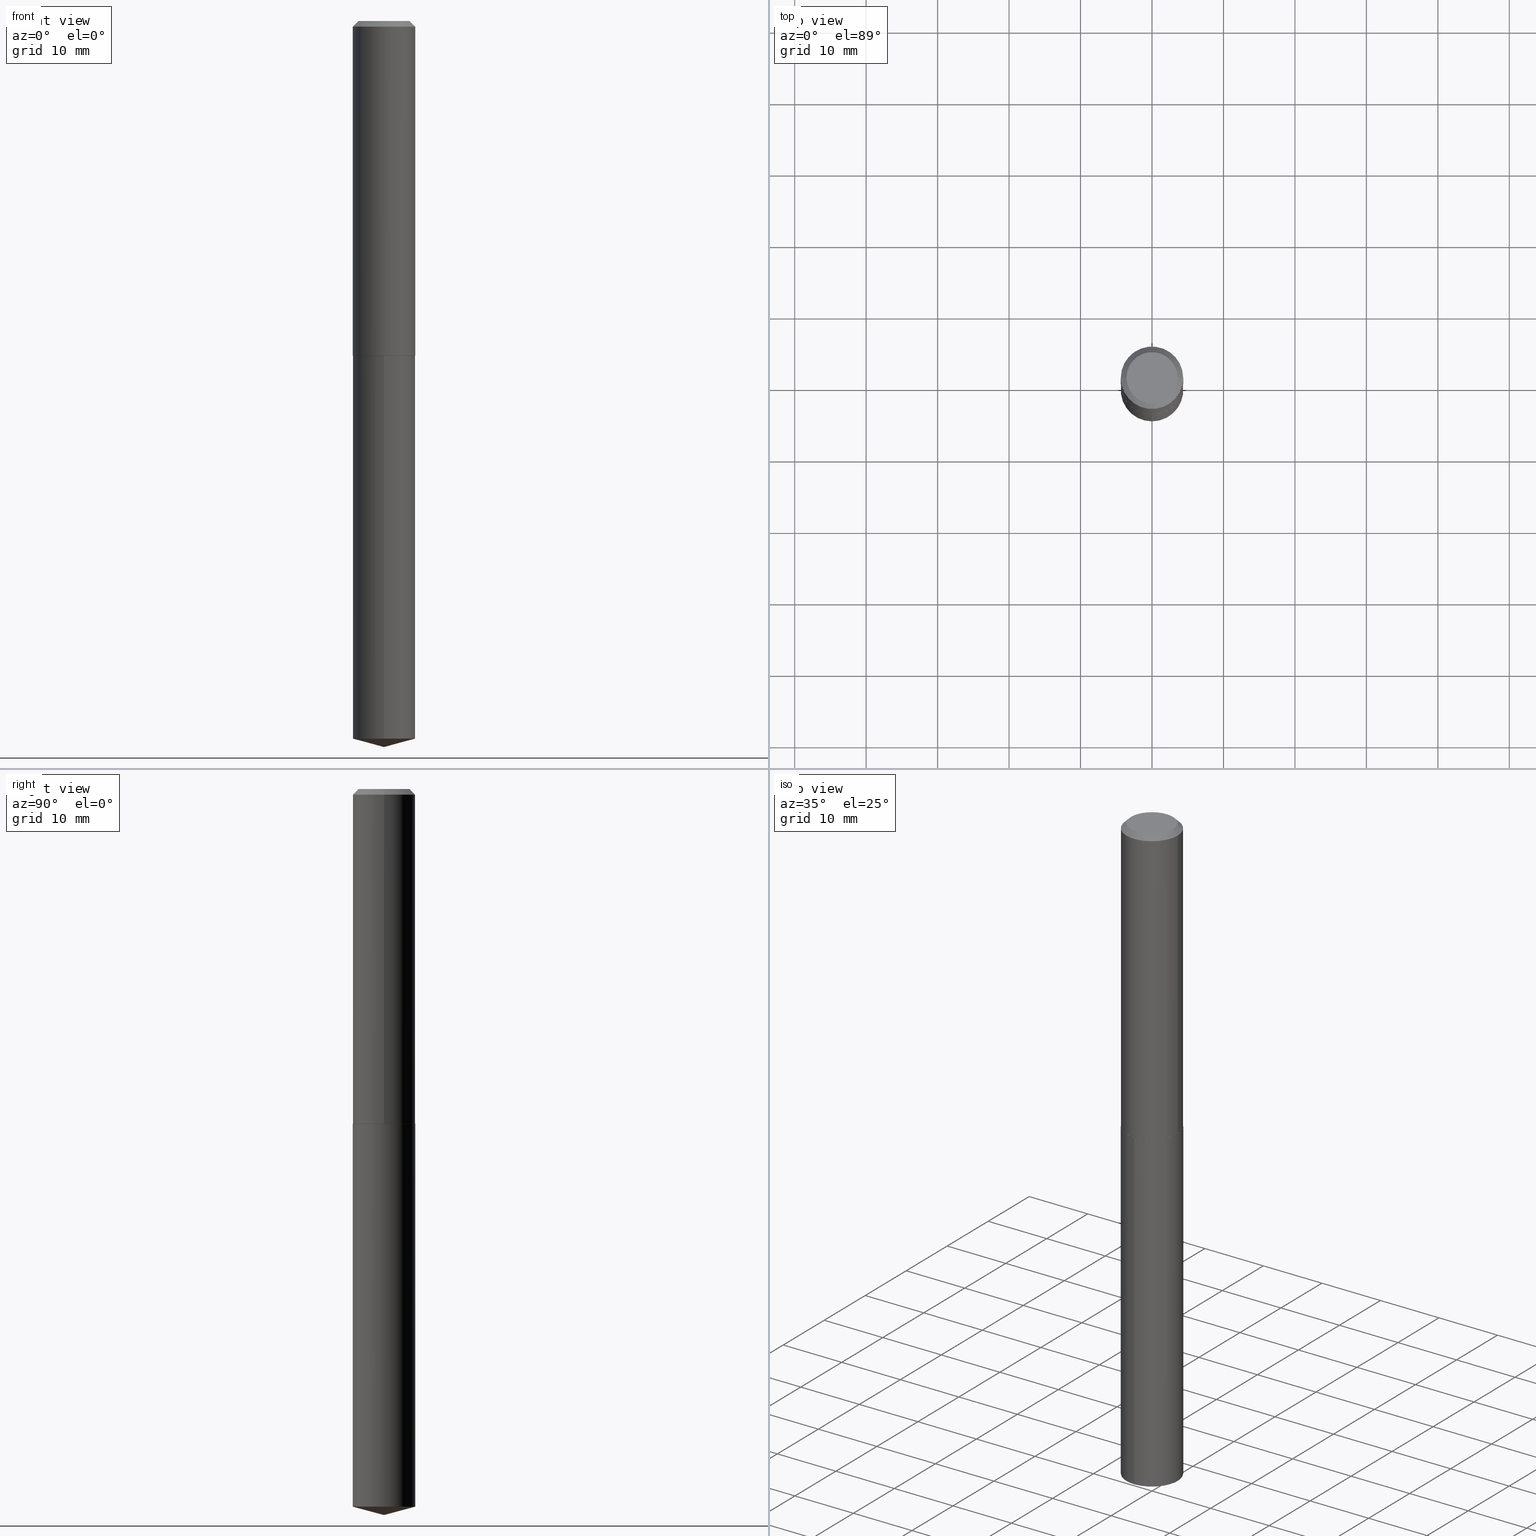
[diagram: canonical four-view strip — front | top / right | iso, engineering-drawing reading convention]
A machine part, canonical four-view strip (front | top / right | iso — engineering-drawing reading convention). The complete STEP part file that produces these views, byte-faithful:
ISO-10303-21;
HEADER;
FILE_DESCRIPTION (( 'STEP AP203' ),
    '1' );
FILE_NAME ('53122.STEP',
    '2024-04-22T19:12:26',
    ( '' ),
    ( '' ),
    'SwSTEP 2.0',
    'SolidWorks 2023',
    '' );
FILE_SCHEMA (( 'CONFIG_CONTROL_DESIGN' ));
ENDSEC;

DATA;
#1 = CARTESIAN_POINT ( 'NONE',  ( -1.175472951769410740E-47, 1.678263842514562368E-33, 4.806738686653361095E-19 ) ) ;
#2 = DIRECTION ( 'NONE',  ( 1.000000000000000000, -6.982962677686266711E-15, 4.876176775795936353E-29 ) ) ;
#3 = CLOSED_SHELL ( 'NONE', ( #90, #206, #231, #80, #34 ) ) ;
#4 = LINE ( 'NONE', #119, #235 ) ;
#5 = APPROVAL_PERSON_ORGANIZATION ( #76, #173, #315 ) ;
#6 = EDGE_CURVE ( 'NONE', #176, #286, #109, .T. ) ;
#7 = CARTESIAN_POINT ( 'NONE',  ( 0.1719000000000002193, -7.636218836183839889E-15, -1.843299999999999939 ) ) ;
#8 = FACE_OUTER_BOUND ( 'NONE', #244, .T. ) ;
#9 = PERSON_AND_ORGANIZATION_ROLE ( 'creator' ) ;
#10 = ADVANCED_FACE ( 'NONE', ( #8 ), #157, .T. ) ;
#11 = CIRCLE ( 'NONE', #106, 0.1714000000000003854 ) ;
#12 = VECTOR ( 'NONE', #36, 39.37007874015748143 ) ;
#13 = APPLICATION_CONTEXT ( 'configuration controlled 3d designs of mechanical parts and assemblies' ) ;
#14 = ORIENTED_EDGE ( 'NONE', *, *, #287, .F. ) ;
#15 = DIRECTION ( 'NONE',  ( 1.000000000000000000, -6.982962677686263555E-15, 0.000000000000000000 ) ) ;
#16 = EDGE_CURVE ( 'NONE', #91, #299, #282, .T. ) ;
#17 = FACE_OUTER_BOUND ( 'NONE', #178, .T. ) ;
#18 = ORIENTED_EDGE ( 'NONE', *, *, #275, .F. ) ;
#19 = DIRECTION ( 'NONE',  ( 1.000000000000000000, -6.982962677686265133E-15, 0.000000000000000000 ) ) ;
#20 = ADVANCED_FACE ( 'NONE', ( #214 ), #183, .T. ) ;
#21 = ORIENTED_EDGE ( 'NONE', *, *, #275, .T. ) ;
#22 = SECURITY_CLASSIFICATION ( '', '', #294 ) ;
#23 = CALENDAR_DATE ( 2024, 22, 4 ) ;
#24 = DIRECTION ( 'NONE',  ( -1.000000000000000000, 6.982962677686265922E-15, 0.000000000000000000 ) ) ;
#25 = ORIENTED_EDGE ( 'NONE', *, *, #67, .F. ) ;
#26 = CARTESIAN_POINT ( 'NONE',  ( 0.1719000000000001083, -1.200371284294270030E-15, 8.382147877593220085E-30 ) ) ;
#27 = VERTEX_POINT ( 'NONE', #364 ) ;
#28 = EDGE_LOOP ( 'NONE', ( #208, #268, #332 ) ) ;
#29 =( GEOMETRIC_REPRESENTATION_CONTEXT ( 3 ) GLOBAL_UNCERTAINTY_ASSIGNED_CONTEXT ( ( #124 ) ) GLOBAL_UNIT_ASSIGNED_CONTEXT ( ( #130, #190, #314 ) ) REPRESENTATION_CONTEXT ( 'NONE', 'WORKASPACE' ) );
#30 = LINE ( 'NONE', #65, #387 ) ;
#31 = APPLICATION_CONTEXT ( 'configuration controlled 3d designs of mechanical parts and assemblies' ) ;
#32 = DIRECTION ( 'NONE',  ( 1.000000000000000000, -6.982962677686266711E-15, 4.876217917804670571E-29 ) ) ;
#33 = CARTESIAN_POINT ( 'NONE',  ( -8.649637041920194510E-28, 1.234940469367559449E-13, 35.37007874015748143 ) ) ;
#34 = ADVANCED_FACE ( 'NONE', ( #97 ), #325, .F. ) ;
#35 = CLOSED_SHELL ( 'NONE', ( #317, #10, #380, #134, #199, #20, #129, #205 ) ) ;
#36 = DIRECTION ( 'NONE',  ( 6.863315791527692682E-15, 0.9659258262890693114, 0.2588190451025169092 ) ) ;
#37 = APPROVAL_DATE_TIME ( #78, #38 ) ;
#38 = APPROVAL ( #104, 'UNSPECIFIED' ) ;
#39 = CARTESIAN_POINT ( 'NONE',  ( -0.1719000000000002193, -5.214424589117957264E-15, -1.843299999999999939 ) ) ;
#40 = ORIENTED_EDGE ( 'NONE', *, *, #191, .F. ) ;
#41 = VECTOR ( 'NONE', #219, 39.37007874015748143 ) ;
#42 = LOCAL_TIME ( 15, 12, 26.00000000000000000, #131 ) ;
#43 = PERSON_AND_ORGANIZATION ( #285, #217 ) ;
#44 = CARTESIAN_POINT ( 'NONE',  ( 4.507732650441062191E-29, -6.435847551889570648E-15, -1.843299999999999939 ) ) ;
#45 = EDGE_CURVE ( 'NONE', #27, #292, #222, .T. ) ;
#46 = DATE_AND_TIME ( #23, #223 ) ;
#47 = AXIS2_PLACEMENT_3D ( 'NONE', #137, #329, #265 ) ;
#48 = APPROVAL_PERSON_ORGANIZATION ( #168, #334, #79 ) ;
#49 = CARTESIAN_POINT ( 'NONE',  ( 1.221422962771708835E-15, 0.1718999999999935302, -1.843800000000000328 ) ) ;
#50 = EDGE_LOOP ( 'NONE', ( #74, #21, #84, #241 ) ) ;
#51 = DIRECTION ( 'NONE',  ( 1.000000000000000000, -6.982962677686265922E-15, 0.000000000000000000 ) ) ;
#52 = VERTEX_POINT ( 'NONE', #139 ) ;
#53 = DIRECTION ( 'NONE',  ( -2.445468806185136877E-29, 3.491481338843145188E-15, 1.000000000000000000 ) ) ;
#54 = ORIENTED_EDGE ( 'NONE', *, *, #257, .F. ) ;
#55 = AXIS2_PLACEMENT_3D ( 'NONE', #307, #153, #2 ) ;
#56 = AXIS2_PLACEMENT_3D ( 'NONE', #44, #225, #15 ) ;
#57 = CARTESIAN_POINT ( 'NONE',  ( -0.1719000000000000250, 1.091262492455420141E-15, -0.03125000000000021511 ) ) ;
#58 = ORIENTED_EDGE ( 'NONE', *, *, #150, .T. ) ;
#59 = LINE ( 'NONE', #177, #41 ) ;
#60 = ORIENTED_EDGE ( 'NONE', *, *, #186, .T. ) ;
#61 = CC_DESIGN_DATE_AND_TIME_ASSIGNMENT ( #192, #346, ( #169 ) ) ;
#62 = DIRECTION ( 'NONE',  ( 0.7071067811865454633, -7.319954787623246579E-15, -0.7071067811865493491 ) ) ;
#63 = VECTOR ( 'NONE', #53, 39.37007874015748143 ) ;
#64 = AXIS2_PLACEMENT_3D ( 'NONE', #248, #361, #93 ) ;
#65 = CARTESIAN_POINT ( 'NONE',  ( 9.781869440644175316E-29, -1.396593363852779569E-14, -4.000000000000000000 ) ) ;
#66 = CARTESIAN_POINT ( 'NONE',  ( 4.508955384844154993E-29, -6.437593292558991362E-15, -1.843799999999999883 ) ) ;
#67 = EDGE_CURVE ( 'NONE', #52, #120, #11, .T. ) ;
#68 = PRODUCT_RELATED_PRODUCT_CATEGORY ( 'detail', '', ( #309 ) ) ;
#69 = CARTESIAN_POINT ( 'NONE',  ( 4.508955384844154993E-29, -6.437593292558991362E-15, -1.843799999999999883 ) ) ;
#70 = LINE ( 'NONE', #154, #72 ) ;
#71 = FACE_OUTER_BOUND ( 'NONE', #28, .T. ) ;
#72 = VECTOR ( 'NONE', #62, 39.37007874015748854 ) ;
#73 = CARTESIAN_POINT ( 'NONE',  ( 9.781869440644176437E-29, -1.396593363852779569E-14, -4.000000000000000000 ) ) ;
#74 = ORIENTED_EDGE ( 'NONE', *, *, #345, .F. ) ;
#75 = VECTOR ( 'NONE', #253, 39.37007874015748143 ) ;
#76 = PERSON_AND_ORGANIZATION ( #285, #217 ) ;
#77 = EDGE_LOOP ( 'NONE', ( #138, #146, #114, #204 ) ) ;
#78 = DATE_AND_TIME ( #224, #363 ) ;
#79 = APPROVAL_ROLE ( '' ) ;
#80 = ADVANCED_FACE ( 'NONE', ( #356 ), #201, .T. ) ;
#81 = CARTESIAN_POINT ( 'NONE',  ( 4.508955384844154993E-29, -6.437593292558991362E-15, -1.843799999999999883 ) ) ;
#82 = ORIENTED_EDGE ( 'NONE', *, *, #300, .T. ) ;
#83 = CARTESIAN_POINT ( 'NONE',  ( 0.1714000000000003854, -7.634473095514420752E-15, -1.843799999999999883 ) ) ;
#84 = ORIENTED_EDGE ( 'NONE', *, *, #6, .T. ) ;
#85 = MANIFOLD_SOLID_BREP ( 'Body-Move/Copy2[1]', #3 ) ;
#86 = SHAPE_DEFINITION_REPRESENTATION ( #123, #161 ) ;
#87 = CARTESIAN_POINT ( 'NONE',  ( 4.508955384844154993E-29, -6.437593292558991362E-15, -1.843799999999999883 ) ) ;
#88 = ORIENTED_EDGE ( 'NONE', *, *, #269, .T. ) ;
#89 = COORDINATED_UNIVERSAL_TIME_OFFSET ( 5, 0, .BEHIND. ) ;
#90 = ADVANCED_FACE ( 'NONE', ( #301 ), #321, .T. ) ;
#91 = VERTEX_POINT ( 'NONE', #49 ) ;
#92 = DIRECTION ( 'NONE',  ( 1.000000000000000000, -6.982962677686263555E-15, 0.000000000000000000 ) ) ;
#93 = DIRECTION ( 'NONE',  ( -1.000000000000000000, 6.982962677686265922E-15, 0.000000000000000000 ) ) ;
#94 = EDGE_CURVE ( 'NONE', #286, #176, #234, .T. ) ;
#95 = AXIS2_PLACEMENT_3D ( 'NONE', #147, #341, #92 ) ;
#96 = CARTESIAN_POINT ( 'NONE',  ( 4.507732650441062191E-29, -6.435847551889570648E-15, -1.843299999999999939 ) ) ;
#97 = FACE_OUTER_BOUND ( 'NONE', #202, .T. ) ;
#98 = CARTESIAN_POINT ( 'NONE',  ( 0.1406499999999999695, -1.126678720521170652E-15, 9.613477373380456417E-19 ) ) ;
#99 = DIRECTION ( 'NONE',  ( -2.445468806185136597E-29, 3.491481338843145583E-15, 1.000000000000000000 ) ) ;
#100 = CONICAL_SURFACE ( 'NONE', #200, 0.1719000000000000250, 0.7853981633974456145 ) ;
#101 = APPROVAL_DATE_TIME ( #133, #173 ) ;
#102 = AXIS2_PLACEMENT_3D ( 'NONE', #362, #128, #273 ) ;
#103 = DESIGN_CONTEXT ( 'detailed design', #31, 'design' ) ;
#104 = APPROVAL_STATUS ( 'not_yet_approved' ) ;
#105 = ORIENTED_EDGE ( 'NONE', *, *, #342, .T. ) ;
#106 = AXIS2_PLACEMENT_3D ( 'NONE', #379, #233, #19 ) ;
#107 = EDGE_CURVE ( 'NONE', #239, #176, #354, .T. ) ;
#108 = CARTESIAN_POINT ( 'NONE',  ( 4.508955384844154993E-29, -6.437593292558991362E-15, -1.843799999999999883 ) ) ;
#109 = CIRCLE ( 'NONE', #216, 0.1719000000000000250 ) ;
#110 = ORIENTED_EDGE ( 'NONE', *, *, #94, .T. ) ;
#111 = DATE_TIME_ROLE ( 'classification_date' ) ;
#112 = ORIENTED_EDGE ( 'NONE', *, *, #164, .T. ) ;
#113 = LINE ( 'NONE', #331, #377 ) ;
#114 = ORIENTED_EDGE ( 'NONE', *, *, #159, .T. ) ;
#115 = CC_DESIGN_PERSON_AND_ORGANIZATION_ASSIGNMENT ( #370, #135, ( #169 ) ) ;
#116 = ORIENTED_EDGE ( 'NONE', *, *, #45, .T. ) ;
#117 = AXIS2_PLACEMENT_3D ( 'NONE', #291, #238, #51 ) ;
#118 = AXIS2_PLACEMENT_3D ( 'NONE', #198, #166, #343 ) ;
#119 = CARTESIAN_POINT ( 'NONE',  ( -0.1719000000000002193, -5.214424589117957264E-15, -1.843299999999999939 ) ) ;
#120 = VERTEX_POINT ( 'NONE', #83 ) ;
#121 = FACE_OUTER_BOUND ( 'NONE', #50, .T. ) ;
#122 = CC_DESIGN_PERSON_AND_ORGANIZATION_ASSIGNMENT ( #279, #9, ( #142 ) ) ;
#123 = PRODUCT_DEFINITION_SHAPE ( 'NONE', 'NONE',  #169 ) ;
#124 = UNCERTAINTY_MEASURE_WITH_UNIT (LENGTH_MEASURE( 1.000000000000000082E-05 ), #130, 'distance_accuracy_value', 'NONE');
#125 = FACE_OUTER_BOUND ( 'NONE', #77, .T. ) ;
#126 = CIRCLE ( 'NONE', #102, 0.1718999999999999695 ) ;
#127 = DIRECTION ( 'NONE',  ( -2.445468806185136597E-29, 3.491481338843145583E-15, 1.000000000000000000 ) ) ;
#128 = DIRECTION ( 'NONE',  ( -2.445467360161043829E-29, 3.491483409631948923E-15, 1.000000000000000000 ) ) ;
#129 = ADVANCED_FACE ( 'NONE', ( #375 ), #100, .T. ) ;
#130 =( CONVERSION_BASED_UNIT ( 'INCH', #371 ) LENGTH_UNIT ( ) NAMED_UNIT ( #158 ) );
#131 = COORDINATED_UNIVERSAL_TIME_OFFSET ( 5, 0, .BEHIND. ) ;
#132 = CIRCLE ( 'NONE', #351, 0.1714000000000003854 ) ;
#133 = DATE_AND_TIME ( #344, #42 ) ;
#134 = ADVANCED_FACE ( 'NONE', ( #17 ), #323, .F. ) ;
#135 = PERSON_AND_ORGANIZATION_ROLE ( 'creator' ) ;
#136 = CONICAL_SURFACE ( 'NONE', #311, 146.9311341562552968, 1.308996938995747650 ) ;
#137 = CARTESIAN_POINT ( 'NONE',  ( 4.508955384844154993E-29, -6.437593292558991362E-15, -1.843799999999999883 ) ) ;
#138 = ORIENTED_EDGE ( 'NONE', *, *, #290, .F. ) ;
#139 = CARTESIAN_POINT ( 'NONE',  ( -0.1714000000000003854, -5.217073816292066888E-15, -1.843799999999999883 ) ) ;
#140 = AXIS2_PLACEMENT_3D ( 'NONE', #81, #267, #240 ) ;
#141 = ORIENTED_EDGE ( 'NONE', *, *, #300, .F. ) ;
#142 = PRODUCT_DEFINITION_FORMATION_WITH_SPECIFIED_SOURCE ( 'ANY', '', #309, .NOT_KNOWN. ) ;
#143 = DIRECTION ( 'NONE',  ( -6.982962677686266711E-15, -1.000000000000000000, 3.178415350394722068E-15 ) ) ;
#144 = ORIENTED_EDGE ( 'NONE', *, *, #6, .F. ) ;
#145 = DATE_AND_TIME ( #328, #369 ) ;
#146 = ORIENTED_EDGE ( 'NONE', *, *, #67, .T. ) ;
#147 = CARTESIAN_POINT ( 'NONE',  ( 4.507732650441062191E-29, -6.435847551889570648E-15, -1.843299999999999939 ) ) ;
#148 = EDGE_LOOP ( 'NONE', ( #18, #302, #58, #110 ) ) ;
#149 = APPROVAL_PERSON_ORGANIZATION ( #318, #38, #226 ) ;
#150 = EDGE_CURVE ( 'NONE', #27, #286, #383, .T. ) ;
#151 = CARTESIAN_POINT ( 'NONE',  ( 1.221422962771708441E-15, 0.1718999999999861195, -3.953939533821090535 ) ) ;
#152 = FACE_OUTER_BOUND ( 'NONE', #266, .T. ) ;
#153 = DIRECTION ( 'NONE',  ( -2.445468806185136597E-29, 3.491481338843145583E-15, 1.000000000000000000 ) ) ;
#154 = CARTESIAN_POINT ( 'NONE',  ( 0.1719000000000000250, -1.288428397655775580E-15, -0.03125000000000021511 ) ) ;
#155 = CONICAL_SURFACE ( 'NONE', #64, 0.1719000000000000250, 0.7853981633974456145 ) ;
#156 = DIRECTION ( 'NONE',  ( 2.438088387897960049E-29, -3.491481338843145188E-15, -1.000000000000000000 ) ) ;
#157 = CYLINDRICAL_SURFACE ( 'NONE', #258, 0.1719000000000001083 ) ;
#158 = DIMENSIONAL_EXPONENTS ( 1.000000000000000000, 0.000000000000000000, 0.000000000000000000, 0.000000000000000000, 0.000000000000000000, 0.000000000000000000, 0.000000000000000000 ) ;
#159 = EDGE_CURVE ( 'NONE', #120, #239, #113, .T. ) ;
#160 = DIRECTION ( 'NONE',  ( 0.000000000000000000, 0.000000000000000000, 1.000000000000000000 ) ) ;
#161 = ADVANCED_BREP_SHAPE_REPRESENTATION ( '53122', ( #85, #350, #337 ), #29 ) ;
#162 = CARTESIAN_POINT ( 'NONE',  ( -1.200371284294171620E-15, -0.1719000000000137363, -3.953939533821089647 ) ) ;
#163 = CC_DESIGN_APPROVAL ( #173, ( #169 ) ) ;
#164 = EDGE_CURVE ( 'NONE', #360, #299, #59, .T. ) ;
#165 = EDGE_LOOP ( 'NONE', ( #210, #236, #112, #212 ) ) ;
#166 = DIRECTION ( 'NONE',  ( -2.445467360161043829E-29, 3.491483409631948923E-15, 1.000000000000000000 ) ) ;
#167 =( LENGTH_UNIT ( ) NAMED_UNIT ( * ) SI_UNIT ( $, .METRE. ) );
#168 = PERSON_AND_ORGANIZATION ( #285, #217 ) ;
#169 = PRODUCT_DEFINITION ( 'UNKNOWN', '', #142, #103 ) ;
#170 = EDGE_LOOP ( 'NONE', ( #88, #60, #14, #381 ) ) ;
#171 = DIRECTION ( 'NONE',  ( -2.445468806185136597E-29, 3.491481338843145583E-15, 1.000000000000000000 ) ) ;
#172 = APPROVAL_STATUS ( 'not_yet_approved' ) ;
#173 = APPROVAL ( #284, 'UNSPECIFIED' ) ;
#174 = ORIENTED_EDGE ( 'NONE', *, *, #16, .T. ) ;
#175 = DIRECTION ( 'NONE',  ( -0.7071067811865454633, 2.468850131082235761E-15, -0.7071067811865493491 ) ) ;
#176 = VERTEX_POINT ( 'NONE', #245 ) ;
#177 = CARTESIAN_POINT ( 'NONE',  ( -1.200371284294223882E-15, -0.1719000000000064365, -1.843799999999999439 ) ) ;
#178 = EDGE_LOOP ( 'NONE', ( #54, #25 ) ) ;
#179 = CC_DESIGN_PERSON_AND_ORGANIZATION_ASSIGNMENT ( #43, #281, ( #309 ) ) ;
#180 = CARTESIAN_POINT ( 'NONE',  ( -1.200371284294223882E-15, -0.1719000000000064365, -1.843799999999999439 ) ) ;
#181 = CIRCLE ( 'NONE', #187, 0.1719000000000002193 ) ;
#182 = CARTESIAN_POINT ( 'NONE',  ( -2.350945903538821480E-47, 3.356527685029124736E-33, 9.613477373306722189E-19 ) ) ;
#183 = CYLINDRICAL_SURFACE ( 'NONE', #55, 0.1719000000000001083 ) ;
#184 = CARTESIAN_POINT ( 'NONE',  ( 1.221422962771656968E-15, 0.1718999999999935302, -1.843800000000000328 ) ) ;
#185 = DIRECTION ( 'NONE',  ( -2.445468806185136597E-29, 3.491481338843145583E-15, 1.000000000000000000 ) ) ;
#186 = EDGE_CURVE ( 'NONE', #193, #91, #252, .T. ) ;
#187 = AXIS2_PLACEMENT_3D ( 'NONE', #303, #185, #335 ) ;
#188 = DIRECTION ( 'NONE',  ( -6.982962677686265922E-15, -1.000000000000000000, 3.510303681827633728E-15 ) ) ;
#189 = DIRECTION ( 'NONE',  ( -2.445467360161043829E-29, 3.491483409631948923E-15, 1.000000000000000000 ) ) ;
#190 =( NAMED_UNIT ( * ) PLANE_ANGLE_UNIT ( ) SI_UNIT ( $, .RADIAN. ) );
#191 = EDGE_CURVE ( 'NONE', #389, #360, #30, .T. ) ;
#192 = DATE_AND_TIME ( #373, #316 ) ;
#193 = VERTEX_POINT ( 'NONE', #151 ) ;
#194 = CARTESIAN_POINT ( 'NONE',  ( 0.000000000000000000, 0.000000000000000000, 0.000000000000000000 ) ) ;
#195 = CC_DESIGN_APPROVAL ( #38, ( #142 ) ) ;
#196 = COORDINATED_UNIVERSAL_TIME_OFFSET ( 5, 0, .BEHIND. ) ;
#197 = ORIENTED_EDGE ( 'NONE', *, *, #159, .F. ) ;
#198 = CARTESIAN_POINT ( 'NONE',  ( 9.669232740189070983E-29, -1.380511046690382342E-14, -3.953939533821090091 ) ) ;
#199 = ADVANCED_FACE ( 'NONE', ( #125 ), #271, .T. ) ;
#200 = AXIS2_PLACEMENT_3D ( 'NONE', #207, #242, #24 ) ;
#201 = CYLINDRICAL_SURFACE ( 'NONE', #327, 0.1718999999999999695 ) ;
#202 = EDGE_LOOP ( 'NONE', ( #264, #174 ) ) ;
#203 = DIRECTION ( 'NONE',  ( 1.000000000000000000, -6.982962677686266711E-15, 4.876217917804670571E-29 ) ) ;
#204 = ORIENTED_EDGE ( 'NONE', *, *, #254, .F. ) ;
#205 = ADVANCED_FACE ( 'NONE', ( #340 ), #308, .F. ) ;
#206 = ADVANCED_FACE ( 'NONE', ( #152 ), #136, .T. ) ;
#207 = CARTESIAN_POINT ( 'NONE',  ( 7.642090019328604414E-31, -1.091087918388490513E-16, -0.03125000000000021511 ) ) ;
#208 = ORIENTED_EDGE ( 'NONE', *, *, #305, .F. ) ;
#209 = APPROVAL_DATE_TIME ( #145, #334 ) ;
#210 = ORIENTED_EDGE ( 'NONE', *, *, #186, .F. ) ;
#211 = DIRECTION ( 'NONE',  ( -2.445468806185136597E-29, 3.491481338843145583E-15, 1.000000000000000000 ) ) ;
#212 = ORIENTED_EDGE ( 'NONE', *, *, #16, .F. ) ;
#213 = DIRECTION ( 'NONE',  ( 1.000000000000000000, -6.982962677686265133E-15, 0.000000000000000000 ) ) ;
#214 = FACE_OUTER_BOUND ( 'NONE', #330, .T. ) ;
#215 = CARTESIAN_POINT ( 'NONE',  ( -0.1719000000000001083, 1.221422962771612989E-15, -8.455649420148188785E-30 ) ) ;
#216 = AXIS2_PLACEMENT_3D ( 'NONE', #324, #171, #293 ) ;
#217 = ORGANIZATION ( 'UNSPECIFIED', 'UNSPECIFIED', '' ) ;
#218 = DIRECTION ( 'NONE',  ( -2.445467360161043829E-29, 3.491483409631948923E-15, 1.000000000000000000 ) ) ;
#219 = DIRECTION ( 'NONE',  ( -2.445467360161043829E-29, 3.491483409631948923E-15, 1.000000000000000000 ) ) ;
#220 = DIRECTION ( 'NONE',  ( -2.445468806185136597E-29, 3.491481338843145583E-15, 1.000000000000000000 ) ) ;
#221 = DIRECTION ( 'NONE',  ( -6.982962677686265922E-15, -1.000000000000000000, 3.510303681827633728E-15 ) ) ;
#222 = CIRCLE ( 'NONE', #288, 0.1406499999999999695 ) ;
#223 = LOCAL_TIME ( 15, 12, 26.00000000000000000, #89 ) ;
#224 = CALENDAR_DATE ( 2024, 22, 4 ) ;
#225 = DIRECTION ( 'NONE',  ( -2.445468806185136597E-29, 3.491481338843145583E-15, 1.000000000000000000 ) ) ;
#226 = APPROVAL_ROLE ( '' ) ;
#227 = AXIS2_PLACEMENT_3D ( 'NONE', #66, #189, #280 ) ;
#228 = CC_DESIGN_APPROVAL ( #334, ( #22 ) ) ;
#229 = FACE_OUTER_BOUND ( 'NONE', #326, .T. ) ;
#230 = MECHANICAL_CONTEXT ( 'NONE', #13, 'mechanical' ) ;
#231 = ADVANCED_FACE ( 'NONE', ( #71 ), #259, .T. ) ;
#232 = PERSON_AND_ORGANIZATION_ROLE ( 'design_supplier' ) ;
#233 = DIRECTION ( 'NONE',  ( -2.445468806185136597E-29, 3.491481338843145583E-15, 1.000000000000000000 ) ) ;
#234 = CIRCLE ( 'NONE', #117, 0.1719000000000000250 ) ;
#235 = VECTOR ( 'NONE', #367, 39.37007874015748143 ) ;
#236 = ORIENTED_EDGE ( 'NONE', *, *, #366, .T. ) ;
#237 = COORDINATED_UNIVERSAL_TIME_OFFSET ( 5, 0, .BEHIND. ) ;
#238 = DIRECTION ( 'NONE',  ( -2.445468806185136597E-29, 3.491481338843145583E-15, 1.000000000000000000 ) ) ;
#239 = VERTEX_POINT ( 'NONE', #7 ) ;
#240 = DIRECTION ( 'NONE',  ( 6.982962677686265922E-15, 1.000000000000000000, -3.491483409631948923E-15 ) ) ;
#241 = ORIENTED_EDGE ( 'NONE', *, *, #150, .F. ) ;
#242 = DIRECTION ( 'NONE',  ( 2.445468806185136597E-29, -3.491481338843145583E-15, -1.000000000000000000 ) ) ;
#243 = CIRCLE ( 'NONE', #347, 0.1406499999999999695 ) ;
#244 = EDGE_LOOP ( 'NONE', ( #82, #105, #144, #357 ) ) ;
#245 = CARTESIAN_POINT ( 'NONE',  ( 0.1719000000000000250, -1.309480076133118342E-15, -0.03125000000000021511 ) ) ;
#246 = CC_DESIGN_DATE_AND_TIME_ASSIGNMENT ( #46, #111, ( #22 ) ) ;
#247 = ORIENTED_EDGE ( 'NONE', *, *, #290, .T. ) ;
#248 = CARTESIAN_POINT ( 'NONE',  ( 7.642090019328604414E-31, -1.091087918388490513E-16, -0.03125000000000021511 ) ) ;
#249 = DIRECTION ( 'NONE',  ( -1.000000000000000000, 6.982962677686265922E-15, -4.876176775795935793E-29 ) ) ;
#250 = AXIS2_PLACEMENT_3D ( 'NONE', #96, #127, #333 ) ;
#251 = CC_DESIGN_SECURITY_CLASSIFICATION ( #22, ( #142 ) ) ;
#252 = LINE ( 'NONE', #184, #262 ) ;
#253 = DIRECTION ( 'NONE',  ( -2.445468806185136877E-29, 3.491481338843145188E-15, 1.000000000000000000 ) ) ;
#254 = EDGE_CURVE ( 'NONE', #353, #239, #304, .T. ) ;
#255 = PERSON_AND_ORGANIZATION ( #285, #217 ) ;
#256 = DIRECTION ( 'NONE',  ( 1.000000000000000000, 0.000000000000000000, 0.000000000000000000 ) ) ;
#257 = EDGE_CURVE ( 'NONE', #120, #52, #132, .T. ) ;
#258 = AXIS2_PLACEMENT_3D ( 'NONE', #338, #220, #276 ) ;
#259 = CONICAL_SURFACE ( 'NONE', #263, 146.9311341562552968, 1.308996938995747650 ) ;
#260 = DIRECTION ( 'NONE',  ( -2.445467360161043829E-29, 3.491483409631948923E-15, 1.000000000000000000 ) ) ;
#261 = ORIENTED_EDGE ( 'NONE', *, *, #269, .F. ) ;
#262 = VECTOR ( 'NONE', #270, 39.37007874015748143 ) ;
#263 = AXIS2_PLACEMENT_3D ( 'NONE', #33, #274, #221 ) ;
#264 = ORIENTED_EDGE ( 'NONE', *, *, #287, .T. ) ;
#265 = DIRECTION ( 'NONE',  ( 1.000000000000000000, -6.982962677686265922E-15, 4.876176775795935793E-29 ) ) ;
#266 = EDGE_LOOP ( 'NONE', ( #40, #297, #261 ) ) ;
#267 = DIRECTION ( 'NONE',  ( 2.445467360161043549E-29, -3.491483409631948923E-15, -1.000000000000000000 ) ) ;
#268 = ORIENTED_EDGE ( 'NONE', *, *, #191, .T. ) ;
#269 = EDGE_CURVE ( 'NONE', #360, #193, #126, .T. ) ;
#270 = DIRECTION ( 'NONE',  ( -2.445467360161043829E-29, 3.491483409631948923E-15, 1.000000000000000000 ) ) ;
#271 = CONICAL_SURFACE ( 'NONE', #250, 0.1719000000000002193, 0.7853981633973801113 ) ;
#272 = ORIENTED_EDGE ( 'NONE', *, *, #94, .F. ) ;
#273 = DIRECTION ( 'NONE',  ( -6.982962677686266711E-15, -1.000000000000000000, 3.178415350394722068E-15 ) ) ;
#274 = DIRECTION ( 'NONE',  ( -2.445467360161043829E-29, 3.491483409631948923E-15, 1.000000000000000000 ) ) ;
#275 = EDGE_CURVE ( 'NONE', #292, #176, #70, .T. ) ;
#276 = DIRECTION ( 'NONE',  ( 1.000000000000000000, -6.982962677686266711E-15, 4.876176775795936353E-29 ) ) ;
#277 = CARTESIAN_POINT ( 'NONE',  ( 4.508955384844154993E-29, -6.437593292558991362E-15, -1.843799999999999883 ) ) ;
#278 = LINE ( 'NONE', #215, #75 ) ;
#279 = PERSON_AND_ORGANIZATION ( #285, #217 ) ;
#280 = DIRECTION ( 'NONE',  ( -6.982962677686266711E-15, -1.000000000000000000, 3.178415350394722068E-15 ) ) ;
#281 = PERSON_AND_ORGANIZATION_ROLE ( 'design_owner' ) ;
#282 = CIRCLE ( 'NONE', #227, 0.1718999999999999695 ) ;
#283 = CONICAL_SURFACE ( 'NONE', #56, 0.1719000000000002193, 0.7853981633973801113 ) ;
#284 = APPROVAL_STATUS ( 'not_yet_approved' ) ;
#285 = PERSON ( 'UNSPECIFIED', 'UNSPECIFIED', 'UNSPECIFIED', ('UNSPECIFIED'), ('UNSPECIFIED'), ('UNSPECIFIED') ) ;
#286 = VERTEX_POINT ( 'NONE', #365 ) ;
#287 = EDGE_CURVE ( 'NONE', #299, #91, #378, .T. ) ;
#288 = AXIS2_PLACEMENT_3D ( 'NONE', #385, #211, #203 ) ;
#289 = CIRCLE ( 'NONE', #118, 0.1718999999999999695 ) ;
#290 = EDGE_CURVE ( 'NONE', #52, #353, #4, .T. ) ;
#291 = CARTESIAN_POINT ( 'NONE',  ( 7.642090019328604414E-31, -1.091087918388490513E-16, -0.03125000000000021511 ) ) ;
#292 = VERTEX_POINT ( 'NONE', #98 ) ;
#293 = DIRECTION ( 'NONE',  ( 1.000000000000000000, -6.982962677686265922E-15, 0.000000000000000000 ) ) ;
#294 = SECURITY_CLASSIFICATION_LEVEL ( 'unclassified' ) ;
#295 = AXIS2_PLACEMENT_3D ( 'NONE', #1, #156, #249 ) ;
#296 = DIRECTION ( 'NONE',  ( -2.445467360161043829E-29, 3.491483409631948923E-15, 1.000000000000000000 ) ) ;
#297 = ORIENTED_EDGE ( 'NONE', *, *, #305, .T. ) ;
#298 = DIRECTION ( 'NONE',  ( 0.7071067811864992780, -2.468850131081751401E-15, 0.7071067811865957564 ) ) ;
#299 = VERTEX_POINT ( 'NONE', #180 ) ;
#300 = EDGE_CURVE ( 'NONE', #239, #353, #181, .T. ) ;
#301 = FACE_OUTER_BOUND ( 'NONE', #170, .T. ) ;
#302 = ORIENTED_EDGE ( 'NONE', *, *, #45, .F. ) ;
#303 = CARTESIAN_POINT ( 'NONE',  ( 4.507732650441062191E-29, -6.435847551889570648E-15, -1.843299999999999939 ) ) ;
#304 = CIRCLE ( 'NONE', #95, 0.1719000000000002193 ) ;
#305 = EDGE_CURVE ( 'NONE', #389, #193, #306, .T. ) ;
#306 = LINE ( 'NONE', #310, #12 ) ;
#307 = CARTESIAN_POINT ( 'NONE',  ( 0.000000000000000000, 0.000000000000000000, 0.000000000000000000 ) ) ;
#308 = PLANE ( 'NONE',  #295 ) ;
#309 = PRODUCT ( '53122', '53122', '', ( #230 ) ) ;
#310 = CARTESIAN_POINT ( 'NONE',  ( 9.781874819761108723E-29, -1.396592600228700485E-14, -4.000000000000000000 ) ) ;
#311 = AXIS2_PLACEMENT_3D ( 'NONE', #388, #218, #188 ) ;
#312 = DIRECTION ( 'NONE',  ( -2.445467360161043829E-29, 3.491483409631948923E-15, 1.000000000000000000 ) ) ;
#313 = CC_DESIGN_PERSON_AND_ORGANIZATION_ASSIGNMENT ( #319, #382, ( #22 ) ) ;
#314 =( NAMED_UNIT ( * ) SI_UNIT ( $, .STERADIAN. ) SOLID_ANGLE_UNIT ( ) );
#315 = APPROVAL_ROLE ( '' ) ;
#316 = LOCAL_TIME ( 15, 12, 26.00000000000000000, #196 ) ;
#317 = ADVANCED_FACE ( 'NONE', ( #121 ), #155, .T. ) ;
#318 = PERSON_AND_ORGANIZATION ( #285, #217 ) ;
#319 = PERSON_AND_ORGANIZATION ( #285, #217 ) ;
#320 = AXIS2_PLACEMENT_3D ( 'NONE', #277, #312, #390 ) ;
#321 = CYLINDRICAL_SURFACE ( 'NONE', #372, 0.1718999999999999695 ) ;
#322 = ORIENTED_EDGE ( 'NONE', *, *, #107, .T. ) ;
#323 = PLANE ( 'NONE',  #47 ) ;
#324 = CARTESIAN_POINT ( 'NONE',  ( 7.642090019328604414E-31, -1.091087918388490513E-16, -0.03125000000000021511 ) ) ;
#325 = PLANE ( 'NONE',  #140 ) ;
#326 = EDGE_LOOP ( 'NONE', ( #376, #247, #141, #197 ) ) ;
#327 = AXIS2_PLACEMENT_3D ( 'NONE', #108, #296, #352 ) ;
#328 = CALENDAR_DATE ( 2024, 22, 4 ) ;
#329 = DIRECTION ( 'NONE',  ( -2.438088387897960049E-29, 3.491481338843145188E-15, 1.000000000000000000 ) ) ;
#330 = EDGE_LOOP ( 'NONE', ( #384, #358, #322, #272 ) ) ;
#331 = CARTESIAN_POINT ( 'NONE',  ( 0.1719000000000002193, -7.636218836183839889E-15, -1.843299999999999939 ) ) ;
#332 = ORIENTED_EDGE ( 'NONE', *, *, #366, .F. ) ;
#333 = DIRECTION ( 'NONE',  ( 1.000000000000000000, -6.982962677686263555E-15, 0.000000000000000000 ) ) ;
#334 = APPROVAL ( #172, 'UNSPECIFIED' ) ;
#335 = DIRECTION ( 'NONE',  ( 1.000000000000000000, -6.982962677686263555E-15, 0.000000000000000000 ) ) ;
#336 = VECTOR ( 'NONE', #175, 39.37007874015748854 ) ;
#337 = AXIS2_PLACEMENT_3D ( 'NONE', #194, #160, #256 ) ;
#338 = CARTESIAN_POINT ( 'NONE',  ( 0.000000000000000000, 0.000000000000000000, 0.000000000000000000 ) ) ;
#339 = DIRECTION ( 'NONE',  ( -2.445468806185136597E-29, 3.491481338843145583E-15, 1.000000000000000000 ) ) ;
#340 = FACE_OUTER_BOUND ( 'NONE', #386, .T. ) ;
#341 = DIRECTION ( 'NONE',  ( -2.445468806185136597E-29, 3.491481338843145583E-15, 1.000000000000000000 ) ) ;
#342 = EDGE_CURVE ( 'NONE', #353, #286, #278, .T. ) ;
#343 = DIRECTION ( 'NONE',  ( -6.982962677686266711E-15, -1.000000000000000000, 3.178415350394722068E-15 ) ) ;
#344 = CALENDAR_DATE ( 2024, 22, 4 ) ;
#345 = EDGE_CURVE ( 'NONE', #292, #27, #243, .T. ) ;
#346 = DATE_TIME_ROLE ( 'creation_date' ) ;
#347 = AXIS2_PLACEMENT_3D ( 'NONE', #182, #99, #32 ) ;
#348 = APPLICATION_PROTOCOL_DEFINITION ( 'international standard', 'config_control_design', 1994, #31 ) ;
#349 = COORDINATED_UNIVERSAL_TIME_OFFSET ( 5, 0, .BEHIND. ) ;
#350 = MANIFOLD_SOLID_BREP ( 'Body-Move/Copy2[2]', #35 ) ;
#351 = AXIS2_PLACEMENT_3D ( 'NONE', #69, #339, #213 ) ;
#352 = DIRECTION ( 'NONE',  ( -6.982962677686266711E-15, -1.000000000000000000, 3.178415350394722068E-15 ) ) ;
#353 = VERTEX_POINT ( 'NONE', #39 ) ;
#354 = LINE ( 'NONE', #26, #63 ) ;
#355 = ORIENTED_EDGE ( 'NONE', *, *, #345, .T. ) ;
#356 = FACE_OUTER_BOUND ( 'NONE', #165, .T. ) ;
#357 = ORIENTED_EDGE ( 'NONE', *, *, #107, .F. ) ;
#358 = ORIENTED_EDGE ( 'NONE', *, *, #254, .T. ) ;
#359 = DIRECTION ( 'NONE',  ( -6.745023994389839133E-15, -0.9659258262890674240, 0.2588190451025236816 ) ) ;
#360 = VERTEX_POINT ( 'NONE', #162 ) ;
#361 = DIRECTION ( 'NONE',  ( 2.445468806185136597E-29, -3.491481338843145583E-15, -1.000000000000000000 ) ) ;
#362 = CARTESIAN_POINT ( 'NONE',  ( 9.669232740189070983E-29, -1.380511046690382342E-14, -3.953939533821090091 ) ) ;
#363 = LOCAL_TIME ( 15, 12, 26.00000000000000000, #349 ) ;
#364 = CARTESIAN_POINT ( 'NONE',  ( -0.1406499999999999695, 1.036708096535996774E-15, 9.613477373236131079E-19 ) ) ;
#365 = CARTESIAN_POINT ( 'NONE',  ( -0.1719000000000000250, -2.051055209092595702E-15, -0.03125000000000021511 ) ) ;
#366 = EDGE_CURVE ( 'NONE', #193, #360, #289, .T. ) ;
#367 = DIRECTION ( 'NONE',  ( -0.7071067811864992780, 7.493145998870180611E-15, 0.7071067811865957564 ) ) ;
#368 = APPLICATION_PROTOCOL_DEFINITION ( 'international standard', 'config_control_design', 1994, #13 ) ;
#369 = LOCAL_TIME ( 15, 12, 26.00000000000000000, #237 ) ;
#370 = PERSON_AND_ORGANIZATION ( #285, #217 ) ;
#371 = LENGTH_MEASURE_WITH_UNIT ( LENGTH_MEASURE( 0.02539999999999999897 ), #167 );
#372 = AXIS2_PLACEMENT_3D ( 'NONE', #87, #260, #143 ) ;
#373 = CALENDAR_DATE ( 2024, 22, 4 ) ;
#374 = CC_DESIGN_PERSON_AND_ORGANIZATION_ASSIGNMENT ( #255, #232, ( #142 ) ) ;
#375 = FACE_OUTER_BOUND ( 'NONE', #148, .T. ) ;
#376 = ORIENTED_EDGE ( 'NONE', *, *, #257, .T. ) ;
#377 = VECTOR ( 'NONE', #298, 39.37007874015748143 ) ;
#378 = CIRCLE ( 'NONE', #320, 0.1718999999999999695 ) ;
#379 = CARTESIAN_POINT ( 'NONE',  ( 4.508955384844154993E-29, -6.437593292558991362E-15, -1.843799999999999883 ) ) ;
#380 = ADVANCED_FACE ( 'NONE', ( #229 ), #283, .T. ) ;
#381 = ORIENTED_EDGE ( 'NONE', *, *, #164, .F. ) ;
#382 = PERSON_AND_ORGANIZATION_ROLE ( 'classification_officer' ) ;
#383 = LINE ( 'NONE', #57, #336 ) ;
#384 = ORIENTED_EDGE ( 'NONE', *, *, #342, .F. ) ;
#385 = CARTESIAN_POINT ( 'NONE',  ( -2.350945903538821480E-47, 3.356527685029124736E-33, 9.613477373306722189E-19 ) ) ;
#386 = EDGE_LOOP ( 'NONE', ( #116, #355 ) ) ;
#387 = VECTOR ( 'NONE', #359, 39.37007874015748143 ) ;
#388 = CARTESIAN_POINT ( 'NONE',  ( -8.649637041920194510E-28, 1.234940469367559449E-13, 35.37007874015748143 ) ) ;
#389 = VERTEX_POINT ( 'NONE', #73 ) ;
#390 = DIRECTION ( 'NONE',  ( -6.982962677686266711E-15, -1.000000000000000000, 3.178415350394722068E-15 ) ) ;
ENDSEC;
END-ISO-10303-21;
